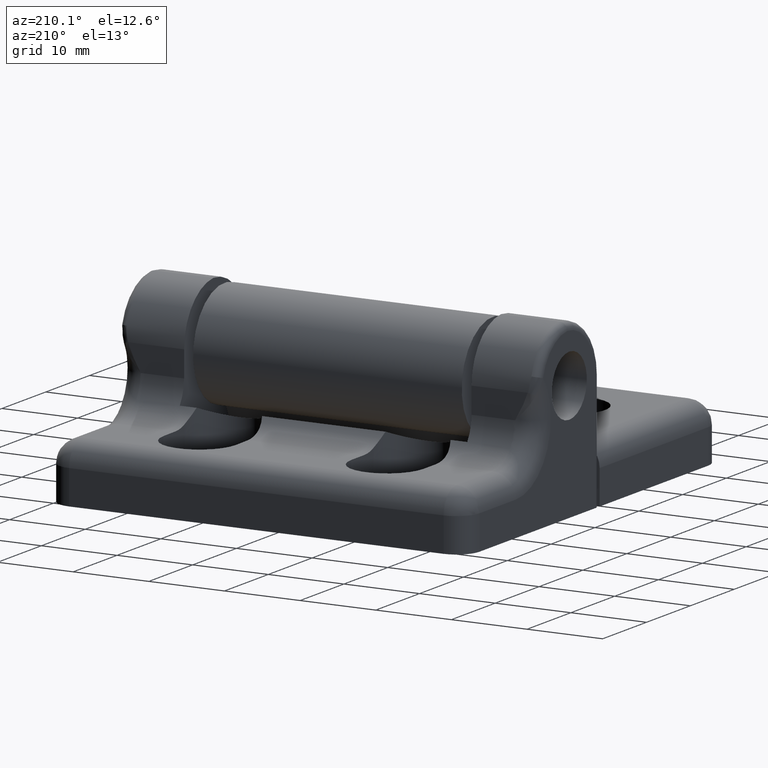
[diagram: clean part render]
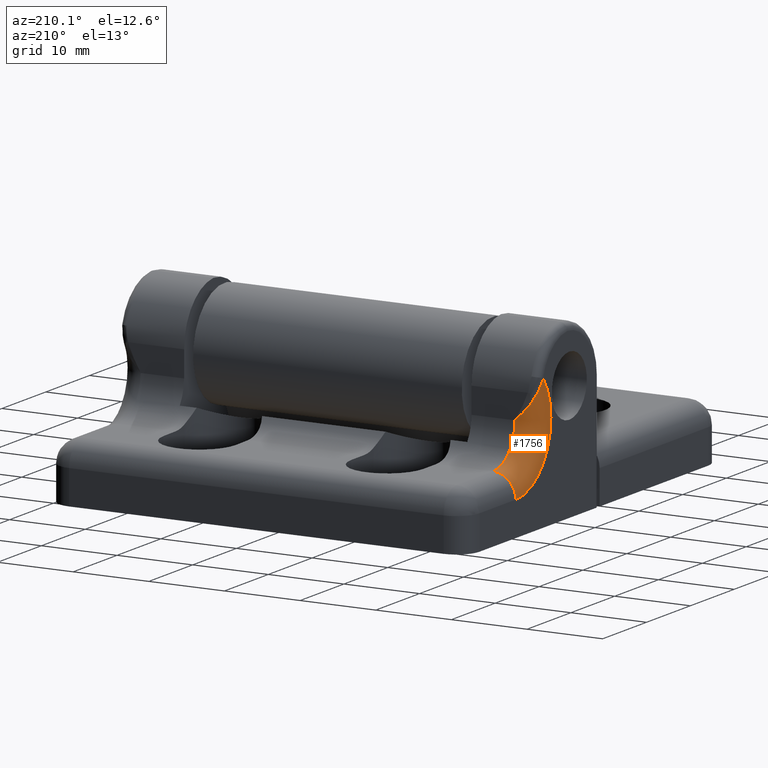
[diagram: same view with one face highlighted and labeled with its STEP entity id]
A machine part, auxiliary view. The second image highlights one B-rep face of the part: STEP entity #1756.
In plain terms, the highlighted toroidal blend (fillet) surface has major radius 8 mm and minor (blend) radius 3 mm.
Its self-contained STEP definition (entity closure, byte-faithful):
#107=B_SPLINE_CURVE_WITH_KNOTS('',3,(#3044,#3045,#3046,#3047,#3048,#3049,
#3050),.UNSPECIFIED.,.F.,.F.,(4,3,4),(3.469447E-18,0.001039095501929,0.002078191003858),
 .UNSPECIFIED.);
#108=B_SPLINE_CURVE_WITH_KNOTS('',3,(#3051,#3052,#3053,#3054,#3055,#3056,
#3057,#3058,#3059,#3060,#3061,#3062,#3063,#3064,#3065,#3066),
 .UNSPECIFIED.,.F.,.F.,(4,3,3,3,3,4),(0.,0.002034604115494,0.0020831752241819,
0.003051906173241,0.003560557202115,0.004069208230989),.UNSPECIFIED.);
#112=TOROIDAL_SURFACE('',#1941,8.00000000000001,3.00000000000001);
#514=FACE_OUTER_BOUND('',#629,.T.);
#629=EDGE_LOOP('',(#1535,#1536,#1537,#1538,#1539));
#717=CIRCLE('',#1893,5.);
#739=CIRCLE('',#1935,8.);
#743=CIRCLE('',#1942,3.);
#859=VERTEX_POINT('',#2856);
#860=VERTEX_POINT('',#2858);
#907=VERTEX_POINT('',#3017);
#908=VERTEX_POINT('',#3019);
#917=VERTEX_POINT('',#3043);
#1058=EDGE_CURVE('',#859,#860,#717,.T.);
#1132=EDGE_CURVE('',#907,#908,#739,.T.);
#1144=EDGE_CURVE('',#907,#917,#107,.T.);
#1145=EDGE_CURVE('',#917,#860,#108,.T.);
#1146=EDGE_CURVE('',#908,#859,#743,.T.);
#1535=ORIENTED_EDGE('',*,*,#1144,.T.);
#1536=ORIENTED_EDGE('',*,*,#1145,.T.);
#1537=ORIENTED_EDGE('',*,*,#1058,.F.);
#1538=ORIENTED_EDGE('',*,*,#1146,.F.);
#1539=ORIENTED_EDGE('',*,*,#1132,.F.);
#1756=ADVANCED_FACE('',(#514),#112,.T.);
#1893=AXIS2_PLACEMENT_3D('',#2859,#2275,#2276);
#1935=AXIS2_PLACEMENT_3D('',#3020,#2405,#2406);
#1941=AXIS2_PLACEMENT_3D('',#3042,#2425,#2426);
#1942=AXIS2_PLACEMENT_3D('',#3067,#2427,#2428);
#2275=DIRECTION('center_axis',(-1.,0.,0.));
#2276=DIRECTION('ref_axis',(0.,0.,-1.));
#2405=DIRECTION('center_axis',(1.,0.,0.));
#2406=DIRECTION('ref_axis',(0.,0.,-1.));
#2425=DIRECTION('center_axis',(-1.,-1.83622934512806E-15,-1.95656836681372E-15));
#2426=DIRECTION('ref_axis',(-1.93784382480027E-15,0.,1.));
#2427=DIRECTION('center_axis',(0.,1.,0.));
#2428=DIRECTION('ref_axis',(0.,0.,1.));
#2856=CARTESIAN_POINT('',(-14.75,34.1677756572818,7.99777293092992));
#2858=CARTESIAN_POINT('',(-14.75,29.1677756572818,12.9977729309299));
#2859=CARTESIAN_POINT('Origin',(-14.75,34.1677756572818,12.9977729309299));
#3017=CARTESIAN_POINT('',(-17.75,27.9485298067387,18.0297686632912));
#3019=CARTESIAN_POINT('',(-17.75,34.1677756572818,4.99777293092991));
#3020=CARTESIAN_POINT('Origin',(-17.75,34.1677756572818,12.9977729309299));
#3042=CARTESIAN_POINT('Origin',(-14.75,34.1677756572818,12.9977729309299));
#3043=CARTESIAN_POINT('',(-17.2574102157531,28.6450576876424,16.1376926577219));
#3044=CARTESIAN_POINT('Ctrl Pts',(-17.75,27.9485298067387,18.0297686632912));
#3045=CARTESIAN_POINT('Ctrl Pts',(-17.75,28.100555396383,17.7109878648145));
#3046=CARTESIAN_POINT('Ctrl Pts',(-17.699993158793,28.2357782801068,17.3956206720757));
#3047=CARTESIAN_POINT('Ctrl Pts',(-17.6132807964024,28.3534668454362,17.0806752251271));
#3048=CARTESIAN_POINT('Ctrl Pts',(-17.5265684340119,28.4711554107656,16.7657297781784));
#3049=CARTESIAN_POINT('Ctrl Pts',(-17.4007859970416,28.5717478754652,16.4503603323591));
#3050=CARTESIAN_POINT('Ctrl Pts',(-17.2574102157531,28.6450576876424,16.1376926577219));
#3051=CARTESIAN_POINT('Ctrl Pts',(-17.2574102157531,28.6450576876424,16.1376926577219));
#3052=CARTESIAN_POINT('Ctrl Pts',(-16.9779832985936,28.7879321365369,15.5283305882565));
#3053=CARTESIAN_POINT('Ctrl Pts',(-16.6033749756797,28.9195447077556,14.9779797249843));
#3054=CARTESIAN_POINT('Ctrl Pts',(-16.1668943407206,29.0157090695139,14.4604898533369));
#3055=CARTESIAN_POINT('Ctrl Pts',(-16.1564744520556,29.018004754277,14.4481360707955));
#3056=CARTESIAN_POINT('Ctrl Pts',(-16.1460259917392,29.0202785022869,14.4358077105544));
#3057=CARTESIAN_POINT('Ctrl Pts',(-16.1355497197857,29.0225299515396,14.4235043227794));
#3058=CARTESIAN_POINT('Ctrl Pts',(-15.9266047492828,29.0674341884467,14.1781182725556));
#3059=CARTESIAN_POINT('Ctrl Pts',(-15.706229714608,29.1031044324693,13.9427956256958));
#3060=CARTESIAN_POINT('Ctrl Pts',(-15.479456290726,29.1278457275446,13.7125362246009));
#3061=CARTESIAN_POINT('Ctrl Pts',(-15.360384493246,29.1408366257996,13.591634046975));
#3062=CARTESIAN_POINT('Ctrl Pts',(-15.2395368681297,29.1508219066273,13.4721290864257));
#3063=CARTESIAN_POINT('Ctrl Pts',(-15.1176876284809,29.1575568743289,13.3532498540417));
#3064=CARTESIAN_POINT('Ctrl Pts',(-14.9958383888321,29.1642918420305,13.2343706216578));
#3065=CARTESIAN_POINT('Ctrl Pts',(-14.872173836494,29.1677756572819,13.1153351747047));
#3066=CARTESIAN_POINT('Ctrl Pts',(-14.75,29.1677756572819,12.9977729309299));
#3067=CARTESIAN_POINT('Origin',(-14.75,34.1677756572818,4.99777293092992));